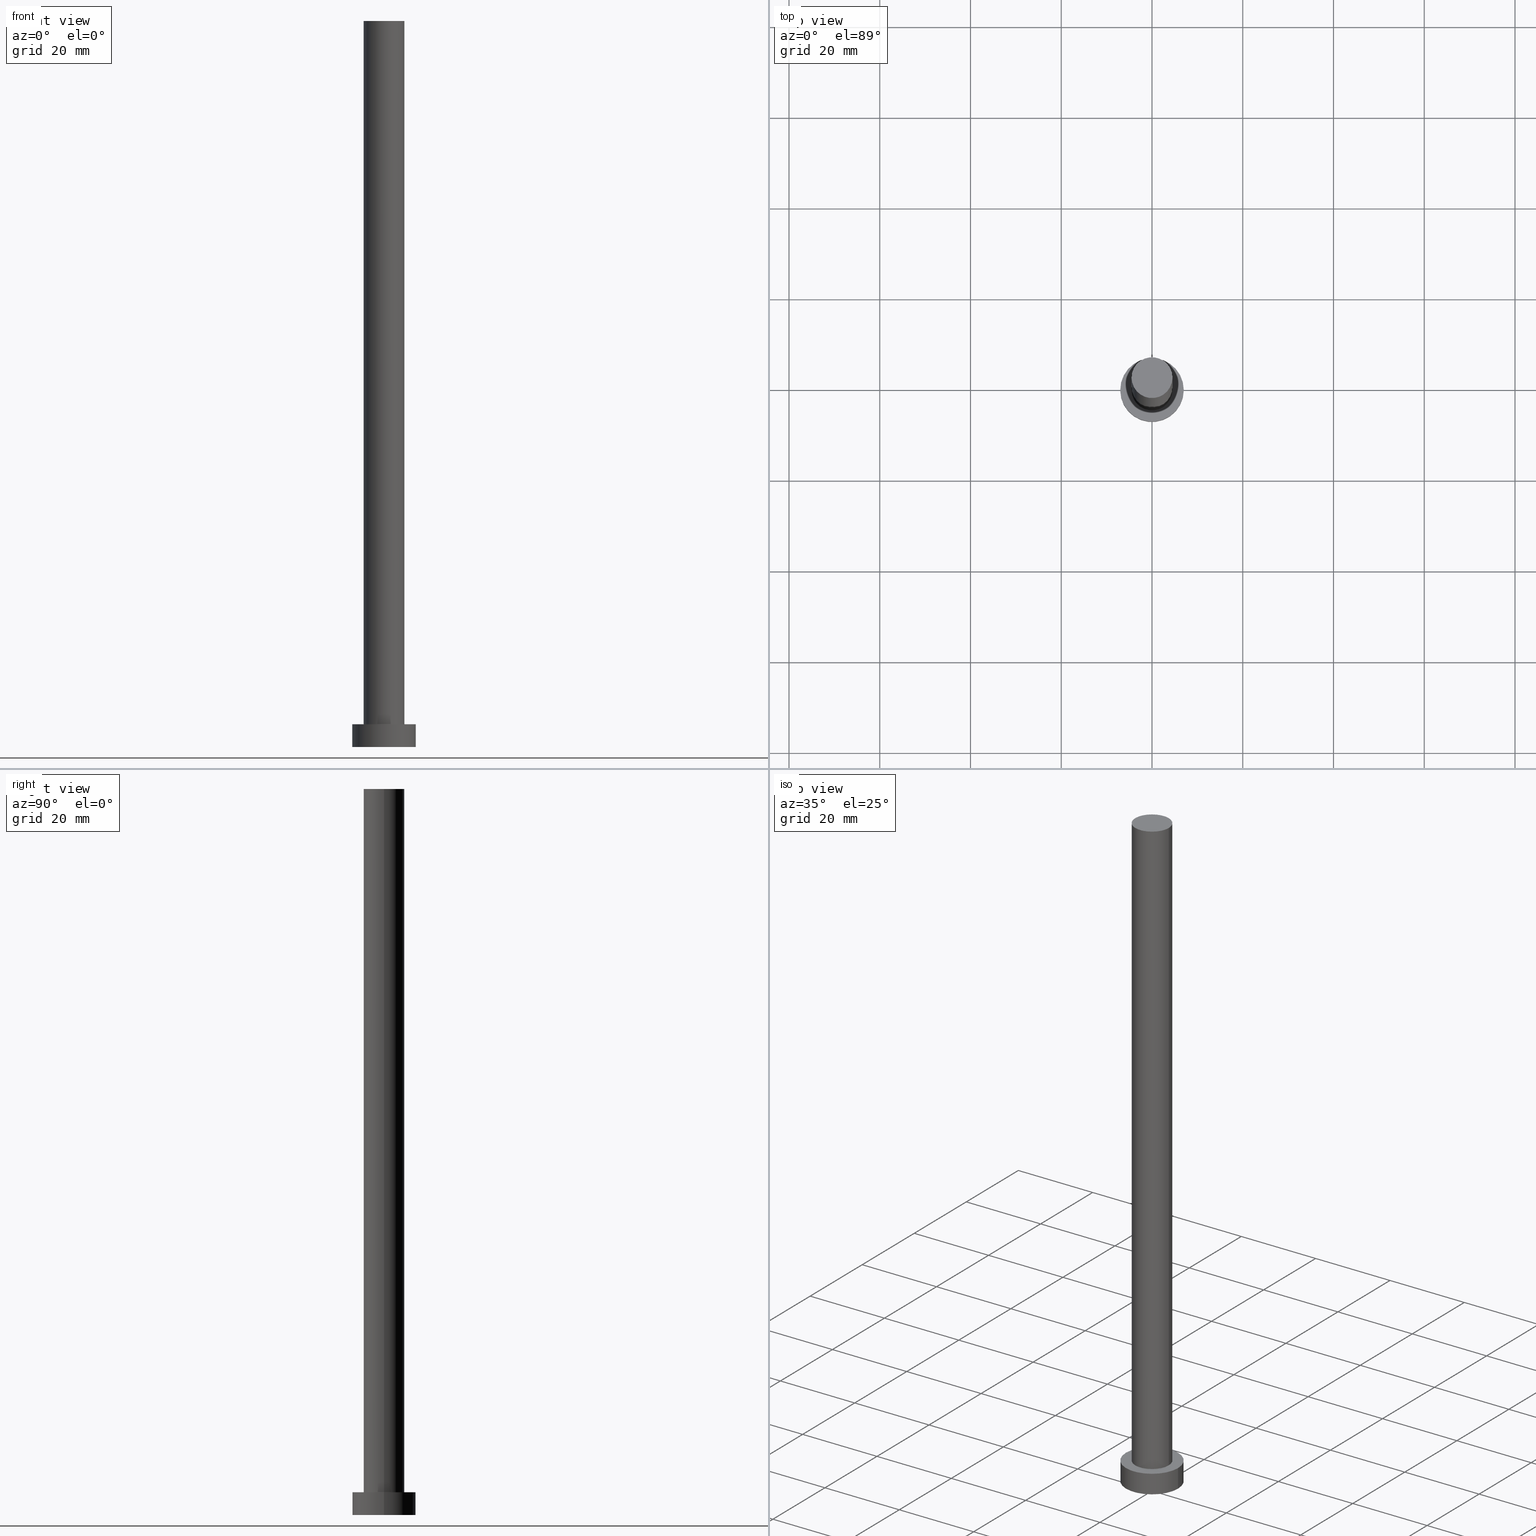
[diagram: canonical four-view strip — front | top / right | iso, engineering-drawing reading convention]
A machine part, canonical four-view strip (front | top / right | iso — engineering-drawing reading convention). The complete STEP part file that produces these views, byte-faithful:
ISO-10303-21;
HEADER;
FILE_DESCRIPTION (( 'STEP AP203' ),
    '1' );
FILE_NAME ('755d.STEP',
    '2023-02-13T13:51:50',
    ( '' ),
    ( '' ),
    'SwSTEP 2.0',
    'SolidWorks 2019',
    '' );
FILE_SCHEMA (( 'CONFIG_CONTROL_DESIGN' ));
ENDSEC;

DATA;
#1 = CARTESIAN_POINT ( 'NONE',  ( -7.000000000000000000, 0.000000000000000000, 5.000000000000000000 ) ) ;
#2 = CARTESIAN_POINT ( 'NONE',  ( 7.000000000000000000, 8.572527594031473190E-16, 5.000000000000000000 ) ) ;
#3 = CARTESIAN_POINT ( 'NONE',  ( 0.000000000000000000, 0.000000000000000000, 5.000000000000000000 ) ) ;
#4 = ORIENTED_EDGE ( 'NONE', *, *, #98, .F. ) ;
#5 = VERTEX_POINT ( 'NONE', #2 ) ;
#6 = VERTEX_POINT ( 'NONE', #40 ) ;
#7 = CALENDAR_DATE ( 2023, 13, 2 ) ;
#8 = CIRCLE ( 'NONE', #212, 7.000000000000000000 ) ;
#9 = APPLICATION_PROTOCOL_DEFINITION ( 'international standard', 'config_control_design', 1994, #41 ) ;
#10 = AXIS2_PLACEMENT_3D ( 'NONE', #213, #64, #211 ) ;
#11 = PERSON_AND_ORGANIZATION_ROLE ( 'design_owner' ) ;
#12 = EDGE_CURVE ( 'NONE', #6, #71, #84, .T. ) ;
#13 = DIRECTION ( 'NONE',  ( -0.000000000000000000, -0.000000000000000000, -1.000000000000000000 ) ) ;
#14 = CALENDAR_DATE ( 2023, 13, 2 ) ;
#15 = CYLINDRICAL_SURFACE ( 'NONE', #240, 4.500000000000000000 ) ;
#16 = LOCAL_TIME ( 14, 51, 50.00000000000000000, #140 ) ;
#17 = EDGE_CURVE ( 'NONE', #237, #6, #222, .T. ) ;
#18 =( NAMED_UNIT ( * ) PLANE_ANGLE_UNIT ( ) SI_UNIT ( $, .RADIAN. ) );
#19 = CARTESIAN_POINT ( 'NONE',  ( 0.000000000000000000, 0.000000000000000000, 160.0000000000000000 ) ) ;
#20 = SECURITY_CLASSIFICATION ( '', '', #251 ) ;
#21 = DIRECTION ( 'NONE',  ( 0.000000000000000000, 0.000000000000000000, 1.000000000000000000 ) ) ;
#22 = CC_DESIGN_DATE_AND_TIME_ASSIGNMENT ( #252, #130, ( #20 ) ) ;
#23 = DIRECTION ( 'NONE',  ( -0.000000000000000000, -0.000000000000000000, -1.000000000000000000 ) ) ;
#24 = DIRECTION ( 'NONE',  ( 1.000000000000000000, 0.000000000000000000, 0.000000000000000000 ) ) ;
#25 = DESIGN_CONTEXT ( 'detailed design', #41, 'design' ) ;
#26 = VECTOR ( 'NONE', #233, 1000.000000000000000 ) ;
#27 = ORIENTED_EDGE ( 'NONE', *, *, #223, .T. ) ;
#28 = PERSON_AND_ORGANIZATION ( #235, #139 ) ;
#29 = ORIENTED_EDGE ( 'NONE', *, *, #98, .T. ) ;
#30 = DATE_AND_TIME ( #119, #193 ) ;
#31 = EDGE_LOOP ( 'NONE', ( #29, #72 ) ) ;
#32 = APPROVAL_DATE_TIME ( #30, #46 ) ;
#33 = ADVANCED_BREP_SHAPE_REPRESENTATION ( '755d', ( #107, #186 ), #123 ) ;
#34 = CC_DESIGN_APPROVAL ( #46, ( #55 ) ) ;
#35 = APPROVAL_STATUS ( 'not_yet_approved' ) ;
#36 = CARTESIAN_POINT ( 'NONE',  ( 7.000000000000000000, 8.572527594031473190E-16, 5.000000000000000000 ) ) ;
#37 = CYLINDRICAL_SURFACE ( 'NONE', #199, 7.000000000000000000 ) ;
#38 = EDGE_CURVE ( 'NONE', #155, #71, #69, .T. ) ;
#39 = FACE_OUTER_BOUND ( 'NONE', #238, .T. ) ;
#40 = CARTESIAN_POINT ( 'NONE',  ( 4.500000000000000000, 5.510910596163088569E-16, 160.0000000000000000 ) ) ;
#41 = APPLICATION_CONTEXT ( 'configuration controlled 3d designs of mechanical parts and assemblies' ) ;
#42 = CARTESIAN_POINT ( 'NONE',  ( 0.000000000000000000, 0.000000000000000000, 5.000000000000000000 ) ) ;
#43 = DIRECTION ( 'NONE',  ( 1.000000000000000000, 0.000000000000000000, 0.000000000000000000 ) ) ;
#44 = CC_DESIGN_PERSON_AND_ORGANIZATION_ASSIGNMENT ( #81, #250, ( #20 ) ) ;
#45 = DIRECTION ( 'NONE',  ( -0.000000000000000000, -0.000000000000000000, -1.000000000000000000 ) ) ;
#46 = APPROVAL ( #243, 'NEUR�EN�' ) ;
#47 = APPROVAL_STATUS ( 'not_yet_approved' ) ;
#48 = EDGE_LOOP ( 'NONE', ( #92, #178 ) ) ;
#49 = ORIENTED_EDGE ( 'NONE', *, *, #135, .F. ) ;
#50 = EDGE_LOOP ( 'NONE', ( #200, #110, #94, #204 ) ) ;
#51 = ADVANCED_FACE ( 'NONE', ( #68 ), #195, .T. ) ;
#52 = PRODUCT ( '755d', '755d', '', ( #143 ) ) ;
#53 = VECTOR ( 'NONE', #230, 1000.000000000000000 ) ;
#54 = CARTESIAN_POINT ( 'NONE',  ( 0.000000000000000000, 0.000000000000000000, 0.000000000000000000 ) ) ;
#55 = PRODUCT_DEFINITION ( 'NEZN�M�', '', #208, #25 ) ;
#56 = LOCAL_TIME ( 14, 51, 50.00000000000000000, #80 ) ;
#57 = DIRECTION ( 'NONE',  ( 0.000000000000000000, 0.000000000000000000, 1.000000000000000000 ) ) ;
#58 = DATE_AND_TIME ( #14, #93 ) ;
#59 = EDGE_CURVE ( 'NONE', #104, #158, #145, .T. ) ;
#60 = CALENDAR_DATE ( 2023, 13, 2 ) ;
#61 = FACE_OUTER_BOUND ( 'NONE', #50, .T. ) ;
#62 = PLANE ( 'NONE',  #10 ) ;
#63 = CIRCLE ( 'NONE', #128, 4.500000000000000000 ) ;
#64 = DIRECTION ( 'NONE',  ( 0.000000000000000000, 0.000000000000000000, 1.000000000000000000 ) ) ;
#65 = FACE_OUTER_BOUND ( 'NONE', #111, .T. ) ;
#66 = CARTESIAN_POINT ( 'NONE',  ( -7.000000000000000000, 0.000000000000000000, 5.000000000000000000 ) ) ;
#67 = DIRECTION ( 'NONE',  ( 1.000000000000000000, 0.000000000000000000, 0.000000000000000000 ) ) ;
#68 = FACE_OUTER_BOUND ( 'NONE', #120, .T. ) ;
#69 = CIRCLE ( 'NONE', #232, 4.500000000000000000 ) ;
#70 = FACE_OUTER_BOUND ( 'NONE', #31, .T. ) ;
#71 = VERTEX_POINT ( 'NONE', #225 ) ;
#72 = ORIENTED_EDGE ( 'NONE', *, *, #173, .T. ) ;
#73 = LOCAL_TIME ( 14, 51, 50.00000000000000000, #156 ) ;
#74 = ORIENTED_EDGE ( 'NONE', *, *, #38, .T. ) ;
#75 = APPROVAL_ROLE ( '' ) ;
#76 = AXIS2_PLACEMENT_3D ( 'NONE', #42, #236, #255 ) ;
#77 = DIRECTION ( 'NONE',  ( 1.000000000000000000, 0.000000000000000000, 0.000000000000000000 ) ) ;
#78 = APPLICATION_PROTOCOL_DEFINITION ( 'international standard', 'config_control_design', 1994, #97 ) ;
#79 = DIRECTION ( 'NONE',  ( -1.000000000000000000, 0.000000000000000000, 0.000000000000000000 ) ) ;
#80 = COORDINATED_UNIVERSAL_TIME_OFFSET ( 1, 0, .AHEAD. ) ;
#81 = PERSON_AND_ORGANIZATION ( #235, #139 ) ;
#82 = CARTESIAN_POINT ( 'NONE',  ( -7.000000000000000000, 0.000000000000000000, 0.000000000000000000 ) ) ;
#83 = DIRECTION ( 'NONE',  ( 1.000000000000000000, 0.000000000000000000, 0.000000000000000000 ) ) ;
#84 = LINE ( 'NONE', #118, #183 ) ;
#85 = CC_DESIGN_PERSON_AND_ORGANIZATION_ASSIGNMENT ( #164, #248, ( #208 ) ) ;
#86 = CYLINDRICAL_SURFACE ( 'NONE', #249, 4.500000000000000000 ) ;
#87 = DIRECTION ( 'NONE',  ( -0.000000000000000000, -0.000000000000000000, -1.000000000000000000 ) ) ;
#88 = ORIENTED_EDGE ( 'NONE', *, *, #12, .T. ) ;
#89 = EDGE_CURVE ( 'NONE', #5, #158, #207, .T. ) ;
#90 = APPROVAL_PERSON_ORGANIZATION ( #96, #46, #142 ) ;
#91 = ORIENTED_EDGE ( 'NONE', *, *, #127, .F. ) ;
#92 = ORIENTED_EDGE ( 'NONE', *, *, #38, .F. ) ;
#93 = LOCAL_TIME ( 14, 51, 50.00000000000000000, #162 ) ;
#94 = ORIENTED_EDGE ( 'NONE', *, *, #127, .T. ) ;
#95 = CC_DESIGN_PERSON_AND_ORGANIZATION_ASSIGNMENT ( #187, #11, ( #52 ) ) ;
#96 = PERSON_AND_ORGANIZATION ( #235, #139 ) ;
#97 = APPLICATION_CONTEXT ( 'configuration controlled 3d designs of mechanical parts and assemblies' ) ;
#98 = EDGE_CURVE ( 'NONE', #153, #5, #141, .T. ) ;
#99 =( NAMED_UNIT ( * ) SI_UNIT ( $, .STERADIAN. ) SOLID_ANGLE_UNIT ( ) );
#100 = PERSON_AND_ORGANIZATION ( #235, #139 ) ;
#101 = DIRECTION ( 'NONE',  ( 1.000000000000000000, 0.000000000000000000, -0.000000000000000000 ) ) ;
#102 = APPROVAL_PERSON_ORGANIZATION ( #163, #161, #188 ) ;
#103 = DIRECTION ( 'NONE',  ( -1.000000000000000000, 0.000000000000000000, 0.000000000000000000 ) ) ;
#104 = VERTEX_POINT ( 'NONE', #82 ) ;
#105 = ADVANCED_FACE ( 'NONE', ( #61 ), #37, .T. ) ;
#106 = DIRECTION ( 'NONE',  ( -1.000000000000000000, 0.000000000000000000, 0.000000000000000000 ) ) ;
#107 = MANIFOLD_SOLID_BREP ( 'P�idat vysunut�m3', #245 ) ;
#108 = AXIS2_PLACEMENT_3D ( 'NONE', #136, #194, #116 ) ;
#109 = ORIENTED_EDGE ( 'NONE', *, *, #59, .F. ) ;
#110 = ORIENTED_EDGE ( 'NONE', *, *, #89, .T. ) ;
#111 = EDGE_LOOP ( 'NONE', ( #109, #91 ) ) ;
#112 = CIRCLE ( 'NONE', #76, 4.500000000000000000 ) ;
#113 = APPROVAL_DATE_TIME ( #58, #161 ) ;
#114 = DIRECTION ( 'NONE',  ( -1.000000000000000000, 0.000000000000000000, 0.000000000000000000 ) ) ;
#115 = ADVANCED_FACE ( 'NONE', ( #189 ), #15, .T. ) ;
#116 = DIRECTION ( 'NONE',  ( 1.000000000000000000, 0.000000000000000000, -0.000000000000000000 ) ) ;
#117 = CARTESIAN_POINT ( 'NONE',  ( 7.000000000000000000, 8.572527594031473190E-16, 0.000000000000000000 ) ) ;
#118 = CARTESIAN_POINT ( 'NONE',  ( 4.500000000000000000, 5.510910596163088569E-16, 160.0000000000000000 ) ) ;
#119 = CALENDAR_DATE ( 2023, 13, 2 ) ;
#120 = EDGE_LOOP ( 'NONE', ( #182, #4, #27, #122 ) ) ;
#121 = EDGE_CURVE ( 'NONE', #71, #155, #112, .T. ) ;
#122 = ORIENTED_EDGE ( 'NONE', *, *, #59, .T. ) ;
#123 =( GEOMETRIC_REPRESENTATION_CONTEXT ( 3 ) GLOBAL_UNCERTAINTY_ASSIGNED_CONTEXT ( ( #220 ) ) GLOBAL_UNIT_ASSIGNED_CONTEXT ( ( #131, #18, #99 ) ) REPRESENTATION_CONTEXT ( 'NONE', 'WORKASPACE' ) );
#124 = ADVANCED_FACE ( 'NONE', ( #148 ), #86, .T. ) ;
#125 = CC_DESIGN_APPROVAL ( #161, ( #208 ) ) ;
#126 = CARTESIAN_POINT ( 'NONE',  ( 0.000000000000000000, 0.000000000000000000, 5.000000000000000000 ) ) ;
#127 = EDGE_CURVE ( 'NONE', #158, #104, #8, .T. ) ;
#128 = AXIS2_PLACEMENT_3D ( 'NONE', #197, #176, #24 ) ;
#129 = AXIS2_PLACEMENT_3D ( 'NONE', #3, #21, #83 ) ;
#130 = DATE_TIME_ROLE ( 'classification_date' ) ;
#131 =( LENGTH_UNIT ( ) NAMED_UNIT ( * ) SI_UNIT ( .MILLI., .METRE. ) );
#132 = PLANE ( 'NONE',  #244 ) ;
#133 = ADVANCED_FACE ( 'NONE', ( #150, #70 ), #147, .T. ) ;
#134 = CARTESIAN_POINT ( 'NONE',  ( 0.000000000000000000, 0.000000000000000000, 5.000000000000000000 ) ) ;
#135 = EDGE_CURVE ( 'NONE', #6, #237, #63, .T. ) ;
#136 = CARTESIAN_POINT ( 'NONE',  ( 0.000000000000000000, 0.000000000000000000, 5.000000000000000000 ) ) ;
#137 = ORIENTED_EDGE ( 'NONE', *, *, #135, .T. ) ;
#138 = EDGE_LOOP ( 'NONE', ( #221, #180, #241, #74 ) ) ;
#139 = ORGANIZATION ( 'NEUR�EN�', 'NEUR�EN�', '' ) ;
#140 = COORDINATED_UNIVERSAL_TIME_OFFSET ( 1, 0, .AHEAD. ) ;
#141 = CIRCLE ( 'NONE', #177, 7.000000000000000000 ) ;
#142 = APPROVAL_ROLE ( '' ) ;
#143 = MECHANICAL_CONTEXT ( 'NONE', #97, 'mechanical' ) ;
#144 = CC_DESIGN_APPROVAL ( #229, ( #20 ) ) ;
#145 = CIRCLE ( 'NONE', #254, 7.000000000000000000 ) ;
#146 = DIRECTION ( 'NONE',  ( 0.000000000000000000, 0.000000000000000000, 1.000000000000000000 ) ) ;
#147 = PLANE ( 'NONE',  #108 ) ;
#148 = FACE_OUTER_BOUND ( 'NONE', #138, .T. ) ;
#149 = CARTESIAN_POINT ( 'NONE',  ( 0.000000000000000000, 0.000000000000000000, 160.0000000000000000 ) ) ;
#150 = FACE_BOUND ( 'NONE', #48, .T. ) ;
#151 = CC_DESIGN_SECURITY_CLASSIFICATION ( #20, ( #208 ) ) ;
#152 = CC_DESIGN_PERSON_AND_ORGANIZATION_ASSIGNMENT ( #28, #234, ( #55 ) ) ;
#153 = VERTEX_POINT ( 'NONE', #66 ) ;
#154 = DATE_AND_TIME ( #203, #16 ) ;
#155 = VERTEX_POINT ( 'NONE', #216 ) ;
#156 = COORDINATED_UNIVERSAL_TIME_OFFSET ( 1, 0, .AHEAD. ) ;
#157 = EDGE_LOOP ( 'NONE', ( #49, #88, #202, #196 ) ) ;
#158 = VERTEX_POINT ( 'NONE', #117 ) ;
#159 = DATE_TIME_ROLE ( 'creation_date' ) ;
#160 = VECTOR ( 'NONE', #214, 1000.000000000000000 ) ;
#161 = APPROVAL ( #35, 'NEUR�EN�' ) ;
#162 = COORDINATED_UNIVERSAL_TIME_OFFSET ( 1, 0, .AHEAD. ) ;
#163 = PERSON_AND_ORGANIZATION ( #235, #139 ) ;
#164 = PERSON_AND_ORGANIZATION ( #235, #139 ) ;
#165 = CARTESIAN_POINT ( 'NONE',  ( 0.000000000000000000, 0.000000000000000000, 5.000000000000000000 ) ) ;
#166 = CIRCLE ( 'NONE', #129, 7.000000000000000000 ) ;
#167 = PERSON_AND_ORGANIZATION ( #235, #139 ) ;
#168 = CARTESIAN_POINT ( 'NONE',  ( 0.000000000000000000, 0.000000000000000000, 160.0000000000000000 ) ) ;
#169 = LINE ( 'NONE', #172, #160 ) ;
#170 = PERSON_AND_ORGANIZATION_ROLE ( 'design_supplier' ) ;
#171 = DIRECTION ( 'NONE',  ( 1.000000000000000000, 0.000000000000000000, 0.000000000000000000 ) ) ;
#172 = CARTESIAN_POINT ( 'NONE',  ( -4.500000000000000000, 0.000000000000000000, 160.0000000000000000 ) ) ;
#173 = EDGE_CURVE ( 'NONE', #5, #153, #166, .T. ) ;
#174 = LINE ( 'NONE', #1, #26 ) ;
#175 = DIRECTION ( 'NONE',  ( 0.000000000000000000, 0.000000000000000000, 1.000000000000000000 ) ) ;
#176 = DIRECTION ( 'NONE',  ( 0.000000000000000000, 0.000000000000000000, 1.000000000000000000 ) ) ;
#177 = AXIS2_PLACEMENT_3D ( 'NONE', #165, #228, #171 ) ;
#178 = ORIENTED_EDGE ( 'NONE', *, *, #121, .F. ) ;
#179 = PRODUCT_DEFINITION_SHAPE ( 'NONE', 'NONE',  #55 ) ;
#180 = ORIENTED_EDGE ( 'NONE', *, *, #17, .F. ) ;
#181 = ORIENTED_EDGE ( 'NONE', *, *, #17, .T. ) ;
#182 = ORIENTED_EDGE ( 'NONE', *, *, #89, .F. ) ;
#183 = VECTOR ( 'NONE', #87, 1000.000000000000000 ) ;
#184 = DATE_AND_TIME ( #7, #73 ) ;
#185 = PRODUCT_RELATED_PRODUCT_CATEGORY ( 'detail', '', ( #52 ) ) ;
#186 = AXIS2_PLACEMENT_3D ( 'NONE', #54, #206, #77 ) ;
#187 = PERSON_AND_ORGANIZATION ( #235, #139 ) ;
#188 = APPROVAL_ROLE ( '' ) ;
#189 = FACE_OUTER_BOUND ( 'NONE', #157, .T. ) ;
#190 = CARTESIAN_POINT ( 'NONE',  ( -4.500000000000000000, 0.000000000000000000, 160.0000000000000000 ) ) ;
#191 = DIRECTION ( 'NONE',  ( 0.000000000000000000, 0.000000000000000000, 1.000000000000000000 ) ) ;
#192 = CC_DESIGN_PERSON_AND_ORGANIZATION_ASSIGNMENT ( #167, #170, ( #208 ) ) ;
#193 = LOCAL_TIME ( 14, 51, 50.00000000000000000, #239 ) ;
#194 = DIRECTION ( 'NONE',  ( 0.000000000000000000, 0.000000000000000000, 1.000000000000000000 ) ) ;
#195 = CYLINDRICAL_SURFACE ( 'NONE', #205, 7.000000000000000000 ) ;
#196 = ORIENTED_EDGE ( 'NONE', *, *, #247, .F. ) ;
#197 = CARTESIAN_POINT ( 'NONE',  ( 0.000000000000000000, 0.000000000000000000, 160.0000000000000000 ) ) ;
#198 = SHAPE_DEFINITION_REPRESENTATION ( #179, #33 ) ;
#199 = AXIS2_PLACEMENT_3D ( 'NONE', #126, #210, #114 ) ;
#200 = ORIENTED_EDGE ( 'NONE', *, *, #173, .F. ) ;
#201 = APPROVAL_DATE_TIME ( #154, #229 ) ;
#202 = ORIENTED_EDGE ( 'NONE', *, *, #121, .T. ) ;
#203 = CALENDAR_DATE ( 2023, 13, 2 ) ;
#204 = ORIENTED_EDGE ( 'NONE', *, *, #223, .F. ) ;
#205 = AXIS2_PLACEMENT_3D ( 'NONE', #246, #13, #79 ) ;
#206 = DIRECTION ( 'NONE',  ( 0.000000000000000000, 0.000000000000000000, 1.000000000000000000 ) ) ;
#207 = LINE ( 'NONE', #36, #53 ) ;
#208 = PRODUCT_DEFINITION_FORMATION_WITH_SPECIFIED_SOURCE ( 'LIBOVOLN�', '', #52, .NOT_KNOWN. ) ;
#209 = DIRECTION ( 'NONE',  ( 1.000000000000000000, 0.000000000000000000, 0.000000000000000000 ) ) ;
#210 = DIRECTION ( 'NONE',  ( -0.000000000000000000, -0.000000000000000000, -1.000000000000000000 ) ) ;
#211 = DIRECTION ( 'NONE',  ( 1.000000000000000000, 0.000000000000000000, -0.000000000000000000 ) ) ;
#212 = AXIS2_PLACEMENT_3D ( 'NONE', #219, #175, #253 ) ;
#213 = CARTESIAN_POINT ( 'NONE',  ( 0.000000000000000000, 0.000000000000000000, 160.0000000000000000 ) ) ;
#214 = DIRECTION ( 'NONE',  ( -0.000000000000000000, -0.000000000000000000, -1.000000000000000000 ) ) ;
#215 = CARTESIAN_POINT ( 'NONE',  ( 0.000000000000000000, 0.000000000000000000, 0.000000000000000000 ) ) ;
#216 = CARTESIAN_POINT ( 'NONE',  ( -4.500000000000000000, 0.000000000000000000, 5.000000000000000000 ) ) ;
#217 = DIRECTION ( 'NONE',  ( 0.000000000000000000, 0.000000000000000000, 1.000000000000000000 ) ) ;
#218 = APPROVAL_PERSON_ORGANIZATION ( #100, #229, #75 ) ;
#219 = CARTESIAN_POINT ( 'NONE',  ( 0.000000000000000000, 0.000000000000000000, 0.000000000000000000 ) ) ;
#220 = UNCERTAINTY_MEASURE_WITH_UNIT (LENGTH_MEASURE( 1.000000000000000082E-05 ), #131, 'distance_accuracy_value', 'NONE');
#221 = ORIENTED_EDGE ( 'NONE', *, *, #12, .F. ) ;
#222 = CIRCLE ( 'NONE', #227, 4.500000000000000000 ) ;
#223 = EDGE_CURVE ( 'NONE', #153, #104, #174, .T. ) ;
#224 = ADVANCED_FACE ( 'NONE', ( #65 ), #132, .F. ) ;
#225 = CARTESIAN_POINT ( 'NONE',  ( 4.500000000000000000, 5.510910596163088569E-16, 5.000000000000000000 ) ) ;
#226 = CARTESIAN_POINT ( 'NONE',  ( 0.000000000000000000, 0.000000000000000000, 0.000000000000000000 ) ) ;
#227 = AXIS2_PLACEMENT_3D ( 'NONE', #149, #146, #67 ) ;
#228 = DIRECTION ( 'NONE',  ( 0.000000000000000000, 0.000000000000000000, 1.000000000000000000 ) ) ;
#229 = APPROVAL ( #47, 'NEUR�EN�' ) ;
#230 = DIRECTION ( 'NONE',  ( -0.000000000000000000, -0.000000000000000000, -1.000000000000000000 ) ) ;
#231 = CC_DESIGN_DATE_AND_TIME_ASSIGNMENT ( #184, #159, ( #55 ) ) ;
#232 = AXIS2_PLACEMENT_3D ( 'NONE', #134, #217, #43 ) ;
#233 = DIRECTION ( 'NONE',  ( -0.000000000000000000, -0.000000000000000000, -1.000000000000000000 ) ) ;
#234 = PERSON_AND_ORGANIZATION_ROLE ( 'creator' ) ;
#235 = PERSON ( 'NEUR�EN�', 'NEUR�EN�', 'NEUR�EN�', ('NEUR�EN�'), ('NEUR�EN�'), ('NEUR�EN�') ) ;
#236 = DIRECTION ( 'NONE',  ( 0.000000000000000000, 0.000000000000000000, 1.000000000000000000 ) ) ;
#237 = VERTEX_POINT ( 'NONE', #190 ) ;
#238 = EDGE_LOOP ( 'NONE', ( #181, #137 ) ) ;
#239 = COORDINATED_UNIVERSAL_TIME_OFFSET ( 1, 0, .AHEAD. ) ;
#240 = AXIS2_PLACEMENT_3D ( 'NONE', #168, #23, #106 ) ;
#241 = ORIENTED_EDGE ( 'NONE', *, *, #247, .T. ) ;
#242 = ADVANCED_FACE ( 'NONE', ( #39 ), #62, .T. ) ;
#243 = APPROVAL_STATUS ( 'not_yet_approved' ) ;
#244 = AXIS2_PLACEMENT_3D ( 'NONE', #215, #191, #101 ) ;
#245 = CLOSED_SHELL ( 'NONE', ( #115, #105, #51, #133, #224, #124, #242 ) ) ;
#246 = CARTESIAN_POINT ( 'NONE',  ( 0.000000000000000000, 0.000000000000000000, 5.000000000000000000 ) ) ;
#247 = EDGE_CURVE ( 'NONE', #237, #155, #169, .T. ) ;
#248 = PERSON_AND_ORGANIZATION_ROLE ( 'creator' ) ;
#249 = AXIS2_PLACEMENT_3D ( 'NONE', #19, #45, #103 ) ;
#250 = PERSON_AND_ORGANIZATION_ROLE ( 'classification_officer' ) ;
#251 = SECURITY_CLASSIFICATION_LEVEL ( 'unclassified' ) ;
#252 = DATE_AND_TIME ( #60, #56 ) ;
#253 = DIRECTION ( 'NONE',  ( 1.000000000000000000, 0.000000000000000000, 0.000000000000000000 ) ) ;
#254 = AXIS2_PLACEMENT_3D ( 'NONE', #226, #57, #209 ) ;
#255 = DIRECTION ( 'NONE',  ( 1.000000000000000000, 0.000000000000000000, 0.000000000000000000 ) ) ;
ENDSEC;
END-ISO-10303-21;
